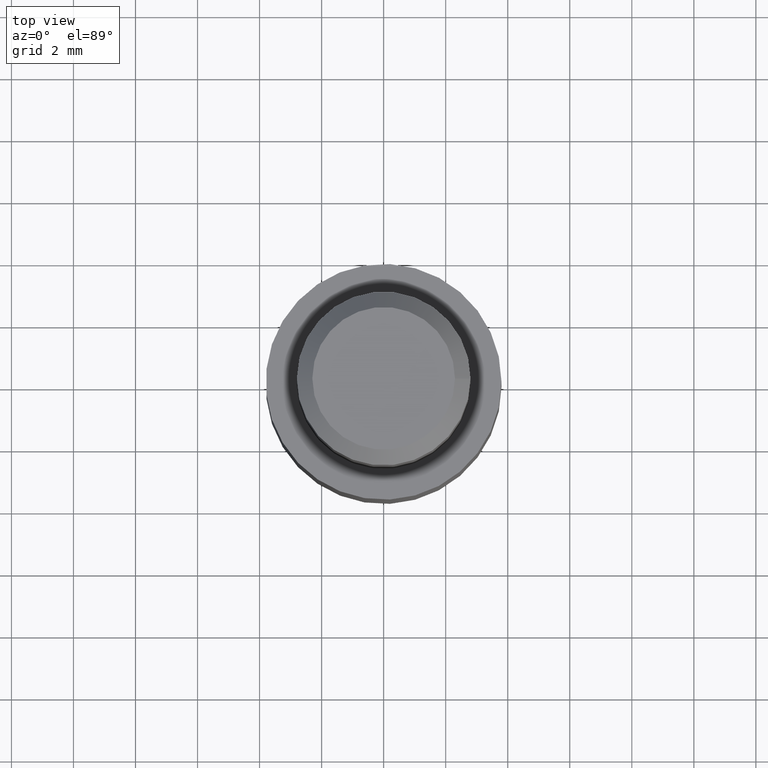
[diagram: clean part render]
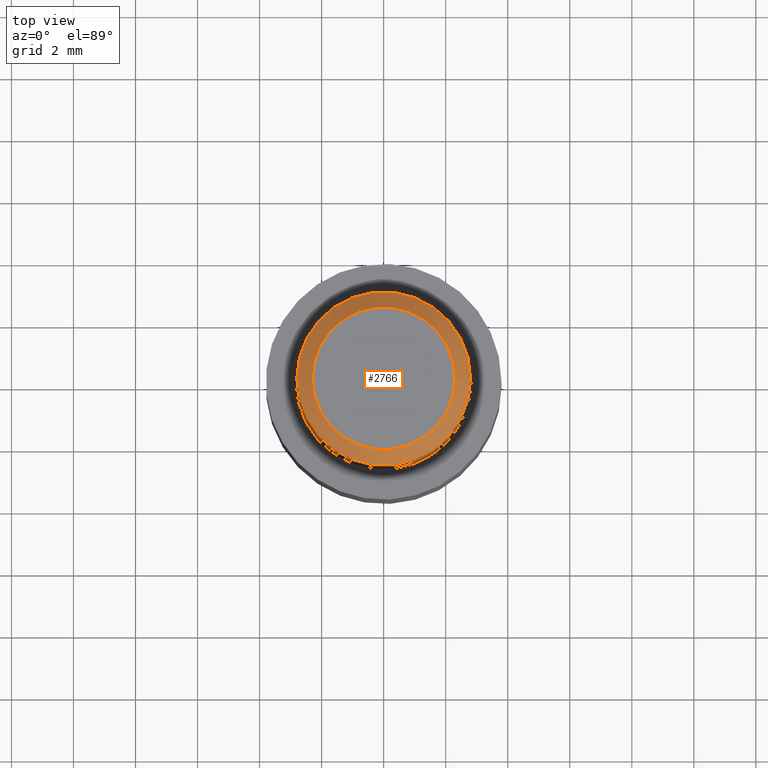
[diagram: same view with one face highlighted and labeled with its STEP entity id]
A machine part, top view. The second image highlights one B-rep face of the part: STEP entity #2766.
In plain terms, the highlighted conical surface has half-angle 45 deg.
Its self-contained STEP definition (entity closure, byte-faithful):
#10 = CARTESIAN_POINT ( 'NONE',  ( 0.000000000000000000, 0.000000000000000000, 21.00000000000000000 ) ) ;
#230 = CIRCLE ( 'NONE', #7577, 2.799999999999999822 ) ;
#633 = DIRECTION ( 'NONE',  ( -1.000000000000000000, 0.000000000000000000, 0.000000000000000000 ) ) ;
#767 = CARTESIAN_POINT ( 'NONE',  ( 2.799999999999999822, 0.000000000000000000, 20.50000000000000355 ) ) ;
#1230 = CARTESIAN_POINT ( 'NONE',  ( 0.000000000000000000, 0.000000000000000000, 20.50000000000000355 ) ) ;
#2685 = ORIENTED_EDGE ( 'NONE', *, *, #9189, .F. ) ;
#2766 = ADVANCED_FACE ( 'NONE', ( #4226, #2832 ), #6492, .T. ) ;
#2832 = FACE_BOUND ( 'NONE', #4889, .T. ) ;
#3303 = AXIS2_PLACEMENT_3D ( 'NONE', #5325, #7245, #633 ) ;
#4226 = FACE_OUTER_BOUND ( 'NONE', #6799, .T. ) ;
#4889 = EDGE_LOOP ( 'NONE', ( #2685 ) ) ;
#5325 = CARTESIAN_POINT ( 'NONE',  ( 0.000000000000000000, 0.000000000000000000, 21.00000000000000000 ) ) ;
#5585 = CARTESIAN_POINT ( 'NONE',  ( 2.300000000000006484, 0.000000000000000000, 21.00000000000000000 ) ) ;
#5636 = CIRCLE ( 'NONE', #8139, 2.300000000000006484 ) ;
#5970 = ORIENTED_EDGE ( 'NONE', *, *, #11924, .F. ) ;
#6492 = CONICAL_SURFACE ( 'NONE', #3303, 2.300000000000006484, 0.7853981633974447263 ) ;
#6799 = EDGE_LOOP ( 'NONE', ( #5970 ) ) ;
#7245 = DIRECTION ( 'NONE',  ( 0.000000000000000000, 0.000000000000000000, -1.000000000000000000 ) ) ;
#7522 = VERTEX_POINT ( 'NONE', #5585 ) ;
#7577 = AXIS2_PLACEMENT_3D ( 'NONE', #1230, #11129, #8015 ) ;
#8015 = DIRECTION ( 'NONE',  ( 1.000000000000000000, 0.000000000000000000, 0.000000000000000000 ) ) ;
#8139 = AXIS2_PLACEMENT_3D ( 'NONE', #10, #10615, #9669 ) ;
#9189 = EDGE_CURVE ( 'NONE', #7522, #7522, #5636, .T. ) ;
#9669 = DIRECTION ( 'NONE',  ( 1.000000000000000000, 0.000000000000000000, 0.000000000000000000 ) ) ;
#10466 = VERTEX_POINT ( 'NONE', #767 ) ;
#10615 = DIRECTION ( 'NONE',  ( 0.000000000000000000, 0.000000000000000000, 1.000000000000000000 ) ) ;
#11129 = DIRECTION ( 'NONE',  ( 0.000000000000000000, 0.000000000000000000, -1.000000000000000000 ) ) ;
#11924 = EDGE_CURVE ( 'NONE', #10466, #10466, #230, .T. ) ;